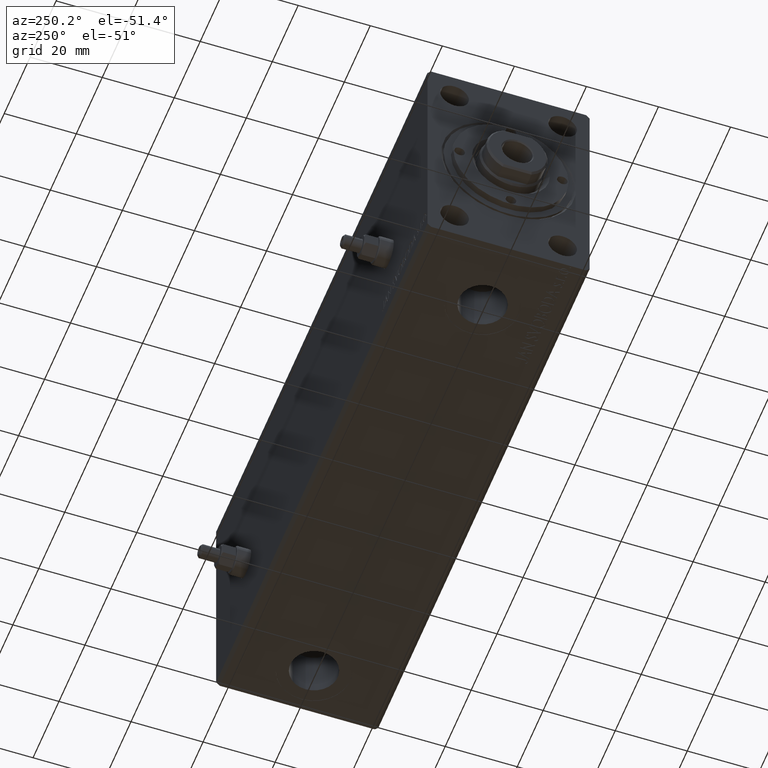
[diagram: clean part render]
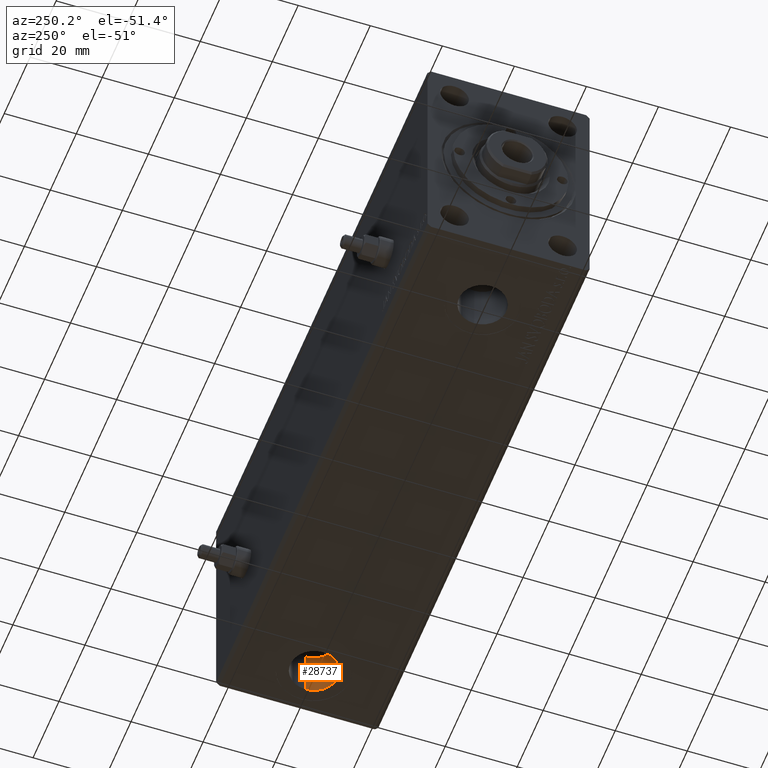
[diagram: same view with one face highlighted and labeled with its STEP entity id]
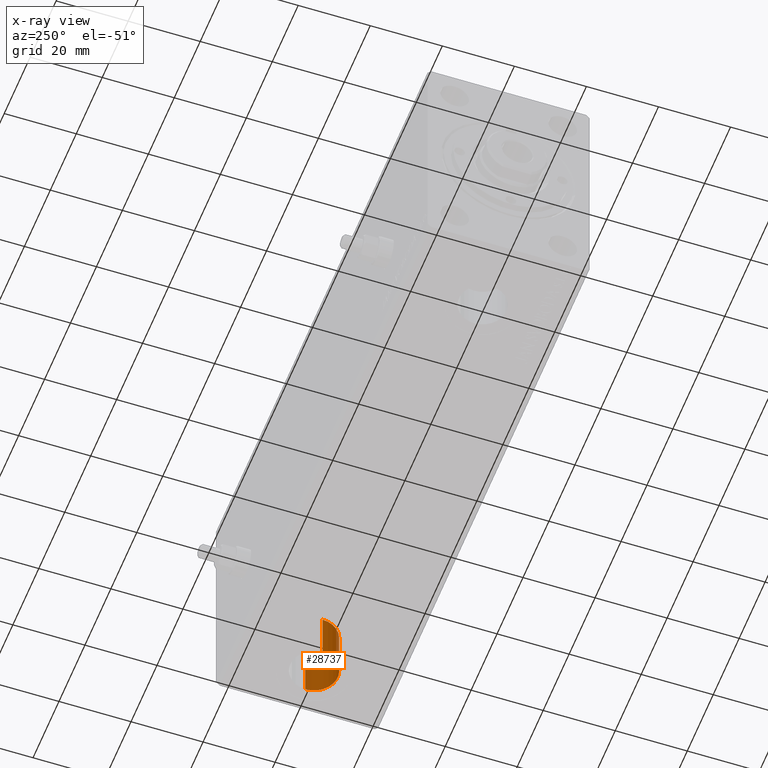
[diagram: x-ray of the same camera — body ghosted, the highlighted face saturated]
A machine part, auxiliary view. The second image highlights one B-rep face of the part: STEP entity #28737.
The next image is the same camera in x-ray: the body ghosted, the highlighted face saturated — about 0% of this face is hidden behind the body in this view.
In plain terms, the highlighted cylindrical surface (edge-blend (fillet) strip) has radius 6.58 mm, axis along (-0, -0, -1).
Its self-contained STEP definition (entity closure, byte-faithful):
#2230 = DIRECTION ( 'NONE',  ( -0.000000000000000000, -0.000000000000000000, -1.000000000000000000 ) ) ;
#2321 = EDGE_CURVE ( 'NONE', #40472, #13921, #36522, .T. ) ;
#2335 = VERTEX_POINT ( 'NONE', #16178 ) ;
#2979 = DIRECTION ( 'NONE',  ( -1.000000000000000000, 0.000000000000000000, 0.000000000000000000 ) ) ;
#6172 = CARTESIAN_POINT ( 'NONE',  ( 149.9999999999999716, -1.210272192541958409E-14, -18.79999999999999716 ) ) ;
#7504 = ORIENTED_EDGE ( 'NONE', *, *, #26974, .T. ) ;
#9158 = DIRECTION ( 'NONE',  ( -0.000000000000000000, -0.000000000000000000, -1.000000000000000000 ) ) ;
#9902 = EDGE_CURVE ( 'NONE', #2335, #41393, #17346, .T. ) ;
#13921 = VERTEX_POINT ( 'NONE', #24074 ) ;
#14845 = AXIS2_PLACEMENT_3D ( 'NONE', #23401, #44193, #16109 ) ;
#16109 = DIRECTION ( 'NONE',  ( -1.000000000000000000, 0.000000000000000000, 0.000000000000000000 ) ) ;
#16178 = CARTESIAN_POINT ( 'NONE',  ( 143.4199999999999591, -1.210272192541958409E-14, -18.79999999999999716 ) ) ;
#16955 = EDGE_LOOP ( 'NONE', ( #24766, #41344, #7504, #20994 ) ) ;
#17115 = DIRECTION ( 'NONE',  ( -0.000000000000000000, -0.000000000000000000, -1.000000000000000000 ) ) ;
#17346 = LINE ( 'NONE', #41578, #40673 ) ;
#20097 = VECTOR ( 'NONE', #2230, 1000.000000000000000 ) ;
#20994 = ORIENTED_EDGE ( 'NONE', *, *, #9902, .F. ) ;
#22581 = AXIS2_PLACEMENT_3D ( 'NONE', #40142, #29637, #33513 ) ;
#22790 = CARTESIAN_POINT ( 'NONE',  ( 156.5799999999999557, -1.129690433158062347E-14, -18.79999999999999716 ) ) ;
#23401 = CARTESIAN_POINT ( 'NONE',  ( 149.9999999999999716, -1.210272192541958409E-14, -32.39999999999999858 ) ) ;
#24074 = CARTESIAN_POINT ( 'NONE',  ( 156.5799999999999557, -1.129690433158062189E-14, -32.39999999999999858 ) ) ;
#24766 = ORIENTED_EDGE ( 'NONE', *, *, #41013, .F. ) ;
#26974 = EDGE_CURVE ( 'NONE', #13921, #41393, #27237, .T. ) ;
#27237 = CIRCLE ( 'NONE', #14845, 6.580000000000002736 ) ;
#28737 = ADVANCED_FACE ( 'NONE', ( #44116 ), #30417, .F. ) ;
#29637 = DIRECTION ( 'NONE',  ( 0.000000000000000000, 0.000000000000000000, -1.000000000000000000 ) ) ;
#30417 = CYLINDRICAL_SURFACE ( 'NONE', #36016, 6.580000000000002736 ) ;
#32041 = CARTESIAN_POINT ( 'NONE',  ( 143.4199999999999591, -1.210272192541958409E-14, -32.39999999999999858 ) ) ;
#32479 = CARTESIAN_POINT ( 'NONE',  ( 156.5799999999999557, -1.129690433158062189E-14, -18.79999999999999716 ) ) ;
#33513 = DIRECTION ( 'NONE',  ( -1.000000000000000000, 0.000000000000000000, 0.000000000000000000 ) ) ;
#36016 = AXIS2_PLACEMENT_3D ( 'NONE', #6172, #9158, #2979 ) ;
#36522 = LINE ( 'NONE', #22790, #20097 ) ;
#40142 = CARTESIAN_POINT ( 'NONE',  ( 149.9999999999999716, -1.210272192541958409E-14, -18.79999999999999716 ) ) ;
#40472 = VERTEX_POINT ( 'NONE', #32479 ) ;
#40673 = VECTOR ( 'NONE', #17115, 1000.000000000000000 ) ;
#41013 = EDGE_CURVE ( 'NONE', #40472, #2335, #42295, .T. ) ;
#41344 = ORIENTED_EDGE ( 'NONE', *, *, #2321, .T. ) ;
#41393 = VERTEX_POINT ( 'NONE', #32041 ) ;
#41578 = CARTESIAN_POINT ( 'NONE',  ( 143.4199999999999591, -1.210272192541958409E-14, -18.79999999999999716 ) ) ;
#42295 = CIRCLE ( 'NONE', #22581, 6.580000000000002736 ) ;
#44116 = FACE_OUTER_BOUND ( 'NONE', #16955, .T. ) ;
#44193 = DIRECTION ( 'NONE',  ( 0.000000000000000000, 0.000000000000000000, -1.000000000000000000 ) ) ;